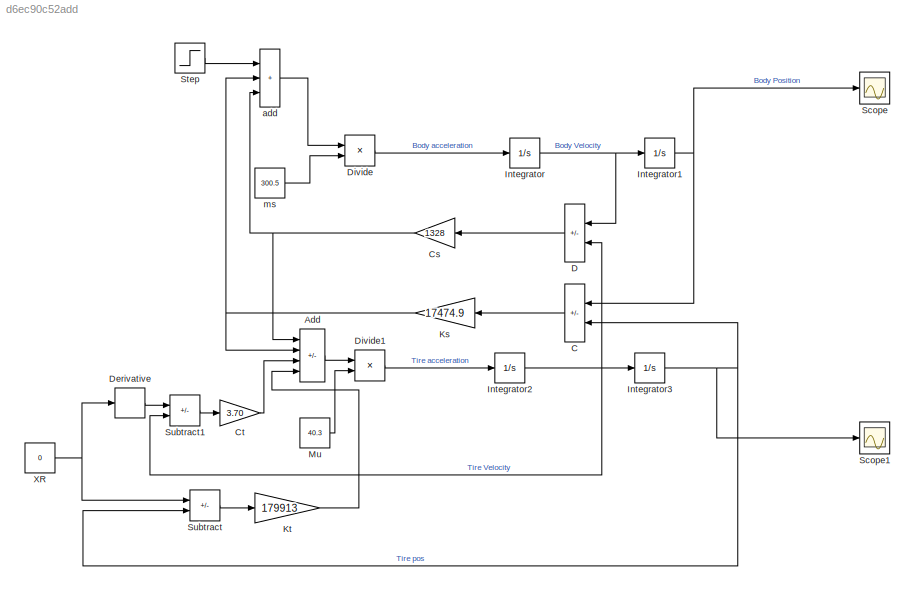
MODEL slx_d6ec90c52add
KIND model
CONFIG AbsTol = auto
CONFIG EnableMultiTasking = off
CONFIG FixedStep = auto
CONFIG MaxStep = auto
CONFIG MinStep = auto
CONFIG RelTol = 1e-3
CONFIG SampleTimeConstraint = Unconstrained
CONFIG SolverName = VariableStepAuto
CONFIG StartTime = 0.0
CONFIG StopTime = 10.0
BLOCK [Sum] Add
  IconShape = rectangular
  Inputs = --++
  Ports = [4, 1]
BLOCK [Sum] C
  IconShape = rectangular
  Inputs = -+
  NameLocation = top
  Ports = [2, 1]
BLOCK [Gain] Cs
  Gain = 1328
  NameLocation = top
BLOCK [Gain] Ct
  Gain = 3.70
BLOCK [Sum] D
  IconShape = rectangular
  Inputs = -+
  NameLocation = top
  Ports = [2, 1]
BLOCK [Derivative] Derivative
BLOCK [Product] Divide
  Inputs = */
  Ports = [2, 1]
BLOCK [Product] Divide1
  Inputs = */
  Ports = [2, 1]
BLOCK [Integrator] Integrator
  Ports = [1, 1]
BLOCK [Integrator] Integrator1
  Ports = [1, 1]
BLOCK [Integrator] Integrator2
  Ports = [1, 1]
BLOCK [Integrator] Integrator3
  Ports = [1, 1]
BLOCK [Gain] Ks
  Gain = 17474.9
  NameLocation = top
BLOCK [Gain] Kt
  Gain = 179913
BLOCK [Constant] Mu
  Value = 40.3
BLOCK [Scope] Scope
  Floating = off
  NumInputPorts = 1
  Ports = [1]
  ScopeSpecificationString = Simulink.scopes.TimeScopeBlockCfg('CurrentConfiguration', extmgr.ConfigurationSet(extmgr.Configuration('Core','General UI',true),extmgr.Configuration('Core','Source UI',true),extmgr.Configuration('Sources','WiredSimulink',true),extmgr.Configuration('Visuals','Time Domain',true,'SerializedDisplays',{struct('MinYLimReal','-0.00001','MaxYLimReal','0.0001','YLabelReal','','MinYLimMag','0.00000','MaxYL...<+1329ch>
BLOCK [Scope] Scope1
  Floating = off
  NumInputPorts = 1
  Ports = [1]
  ScopeSpecificationString = Simulink.scopes.TimeScopeBlockCfg('CurrentConfiguration', extmgr.ConfigurationSet(extmgr.Configuration('Core','General UI',true),extmgr.Configuration('Core','Source UI',true),extmgr.Configuration('Sources','WiredSimulink',true,'DataLoggingVariableName','ScopeData1'),extmgr.Configuration('Visuals','Time Domain',true,'SerializedDisplays',{struct('MinYLimReal','-0.000001','MaxYLimReal','0.000009','YL...<+1375ch>
BLOCK [Step] Step
  SampleTime = 0
BLOCK [Sum] Subtract
  IconShape = rectangular
  Inputs = +-
  Ports = [2, 1]
BLOCK [Sum] Subtract1
  IconShape = rectangular
  Inputs = +-
  Ports = [2, 1]
BLOCK [Constant] XR
  Value = 0
BLOCK [Sum] add
  IconShape = rectangular
  Inputs = +++
  Ports = [3, 1]
BLOCK [Constant] ms
  Value = 300.5
LINE Add:1 -> Divide1:1
LINE C:1 -> Ks:1
NET Cs:1 -> Add:1, add:3
LINE Ct:1 -> Add:3
LINE D:1 -> Cs:1
LINE Derivative:1 -> Subtract1:1
LINE Divide1:1 -> Integrator2:1
LINE Divide:1 -> Integrator:1
NET Integrator1:1 -> C:1, Scope:1
NET Integrator2:1 -> D:2, Integrator3:1, Subtract1:2
NET Integrator3:1 -> C:2, Scope1:1, Subtract:2
NET Integrator:1 -> D:1, Integrator1:1
NET Ks:1 -> Add:2, add:2
LINE Kt:1 -> Add:4
LINE Mu:1 -> Divide1:2
LINE Step:1 -> add:1
LINE Subtract1:1 -> Ct:1
LINE Subtract:1 -> Kt:1
NET XR:1 -> Derivative:1, Subtract:1
LINE add:1 -> Divide:1
LINE ms:1 -> Divide:2
note: NET lines group one-source signal fan-out (src -> all destinations, sorted); 1:1 wires keep LINE
